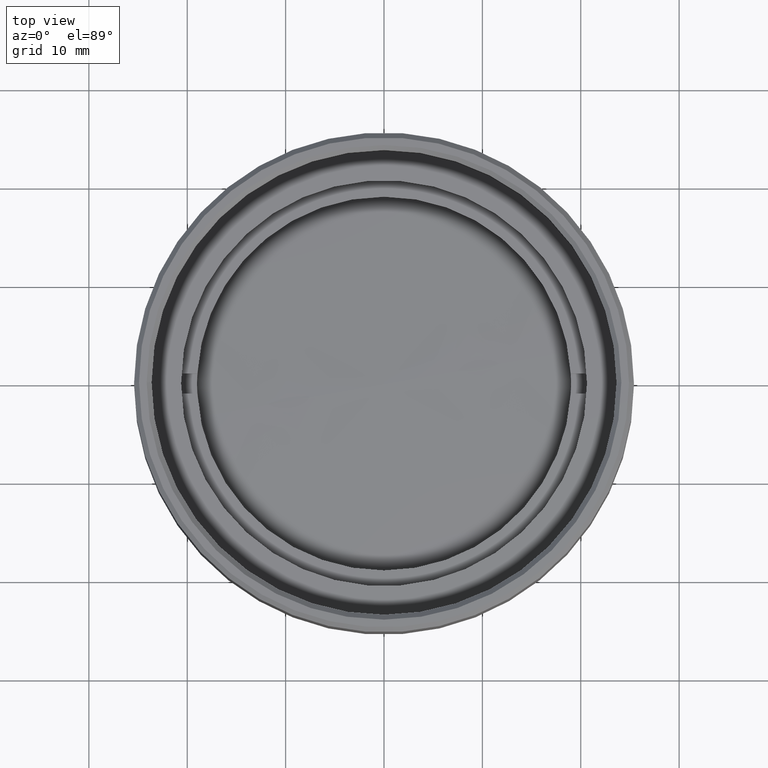
[diagram: clean part render]
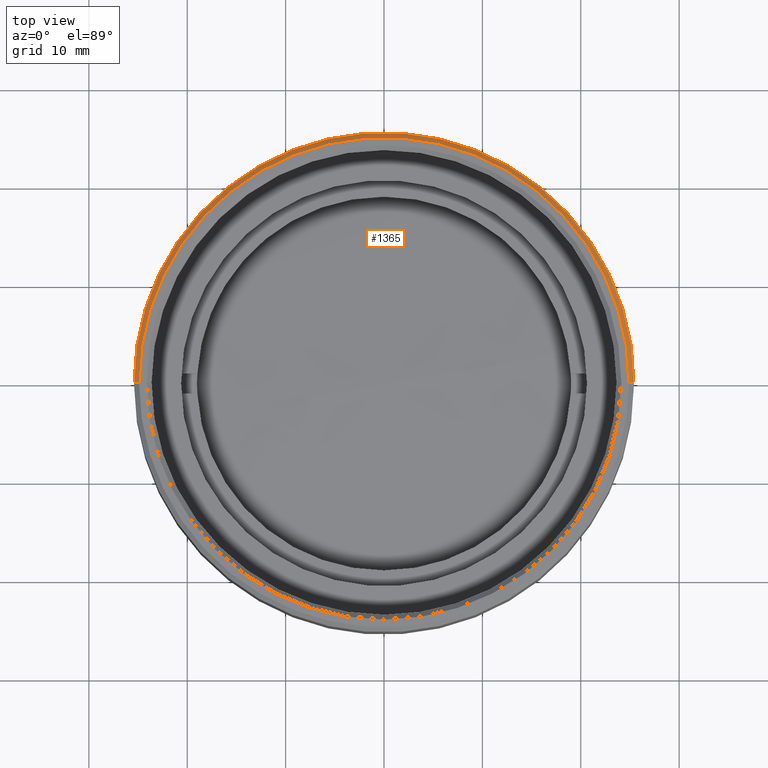
[diagram: same view with one face highlighted and labeled with its STEP entity id]
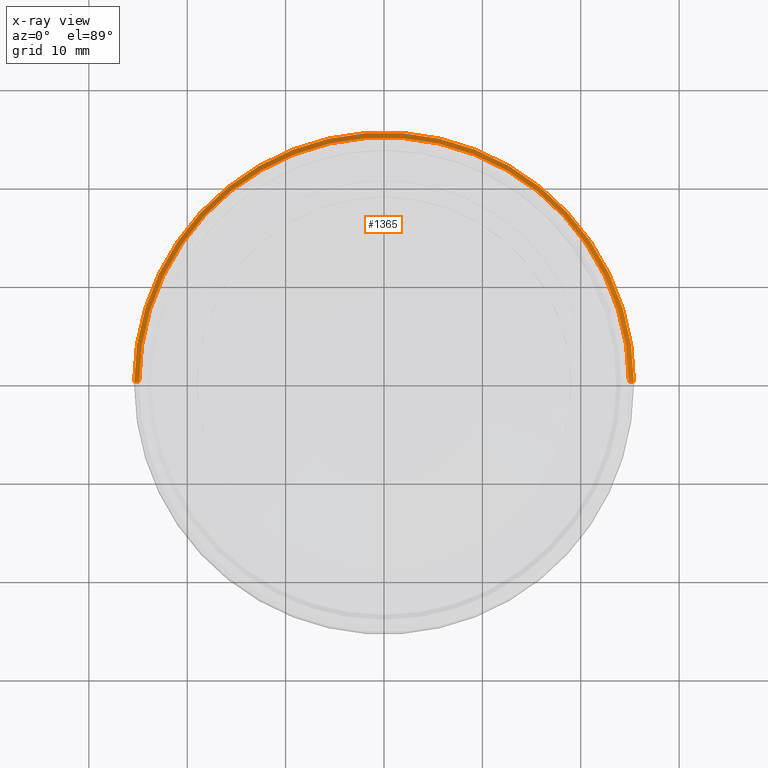
[diagram: x-ray of the same camera — body ghosted, the highlighted face saturated]
A machine part, top view. The second image highlights one B-rep face of the part: STEP entity #1365.
The next image is the same camera in x-ray: the body ghosted, the highlighted face saturated — about 0% of this face is hidden behind the body in this view.
In plain terms, the highlighted conical surface has half-angle 45 deg.
Its self-contained STEP definition (entity closure, byte-faithful):
#28 = DIRECTION ( 'NONE',  ( -1.000000000000000000, 0.000000000000000000, 0.000000000000000000 ) ) ;
#91 = DIRECTION ( 'NONE',  ( 1.000000000000000000, 0.000000000000000000, 0.000000000000000000 ) ) ;
#223 = ORIENTED_EDGE ( 'NONE', *, *, #1740, .F. ) ;
#388 = DIRECTION ( 'NONE',  ( 0.000000000000000000, 0.000000000000000000, 1.000000000000000000 ) ) ;
#407 = CARTESIAN_POINT ( 'NONE',  ( 24.89999999999999147, 3.049370529876908502E-15, 19.50000000000000000 ) ) ;
#502 = VERTEX_POINT ( 'NONE', #1877 ) ;
#503 = CARTESIAN_POINT ( 'NONE',  ( 0.000000000000000000, 0.000000000000000000, 19.50000000000000000 ) ) ;
#520 = AXIS2_PLACEMENT_3D ( 'NONE', #1268, #1611, #1876 ) ;
#530 = CARTESIAN_POINT ( 'NONE',  ( 0.000000000000000000, 0.000000000000000000, 19.50000000000000000 ) ) ;
#679 = CARTESIAN_POINT ( 'NONE',  ( 24.89999999999999147, 3.079986699855592684E-15, 19.50000000000000000 ) ) ;
#849 = CIRCLE ( 'NONE', #520, 25.39999999999999858 ) ;
#876 = ORIENTED_EDGE ( 'NONE', *, *, #1709, .F. ) ;
#986 = CARTESIAN_POINT ( 'NONE',  ( 25.39999999999999858, 3.110602869834276865E-15, 18.99999999999998579 ) ) ;
#1000 = VECTOR ( 'NONE', #1882, 1000.000000000000000 ) ;
#1016 = CARTESIAN_POINT ( 'NONE',  ( -24.89999999999999147, 0.000000000000000000, 19.50000000000000000 ) ) ;
#1080 = ORIENTED_EDGE ( 'NONE', *, *, #1891, .T. ) ;
#1141 = LINE ( 'NONE', #1433, #1000 ) ;
#1162 = ORIENTED_EDGE ( 'NONE', *, *, #1751, .F. ) ;
#1268 = CARTESIAN_POINT ( 'NONE',  ( 0.000000000000000000, 0.000000000000000000, 18.99999999999998579 ) ) ;
#1296 = VECTOR ( 'NONE', #1442, 1000.000000000000000 ) ;
#1299 = VERTEX_POINT ( 'NONE', #679 ) ;
#1315 = CIRCLE ( 'NONE', #1896, 24.89999999999999147 ) ;
#1336 = VERTEX_POINT ( 'NONE', #1016 ) ;
#1365 = ADVANCED_FACE ( 'NONE', ( #1752 ), #1682, .T. ) ;
#1380 = DIRECTION ( 'NONE',  ( 0.000000000000000000, 0.000000000000000000, -1.000000000000000000 ) ) ;
#1433 = CARTESIAN_POINT ( 'NONE',  ( -24.89999999999999147, 0.000000000000000000, 19.50000000000000000 ) ) ;
#1442 = DIRECTION ( 'NONE',  ( 0.7071067811865426878, 8.659560562354874926E-17, -0.7071067811865524577 ) ) ;
#1525 = AXIS2_PLACEMENT_3D ( 'NONE', #503, #1380, #28 ) ;
#1611 = DIRECTION ( 'NONE',  ( 0.000000000000000000, 0.000000000000000000, -1.000000000000000000 ) ) ;
#1682 = CONICAL_SURFACE ( 'NONE', #1525, 24.89999999999999147, 0.7853981633974415066 ) ;
#1709 = EDGE_CURVE ( 'NONE', #1299, #1336, #1315, .T. ) ;
#1722 = LINE ( 'NONE', #407, #1296 ) ;
#1740 = EDGE_CURVE ( 'NONE', #502, #1895, #849, .T. ) ;
#1751 = EDGE_CURVE ( 'NONE', #1336, #502, #1141, .T. ) ;
#1752 = FACE_OUTER_BOUND ( 'NONE', #1808, .T. ) ;
#1808 = EDGE_LOOP ( 'NONE', ( #876, #1080, #223, #1162 ) ) ;
#1876 = DIRECTION ( 'NONE',  ( 1.000000000000000000, 0.000000000000000000, 0.000000000000000000 ) ) ;
#1877 = CARTESIAN_POINT ( 'NONE',  ( -25.39999999999999858, 0.000000000000000000, 18.99999999999998579 ) ) ;
#1882 = DIRECTION ( 'NONE',  ( -0.7071067811865426878, 0.000000000000000000, -0.7071067811865524577 ) ) ;
#1891 = EDGE_CURVE ( 'NONE', #1299, #1895, #1722, .T. ) ;
#1895 = VERTEX_POINT ( 'NONE', #986 ) ;
#1896 = AXIS2_PLACEMENT_3D ( 'NONE', #530, #388, #91 ) ;